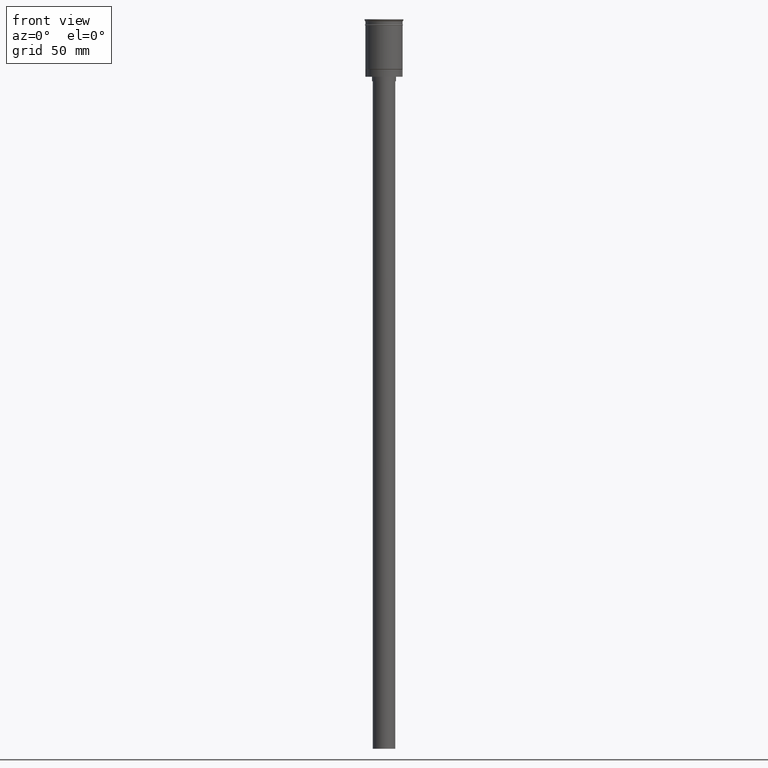
[diagram: clean part render]
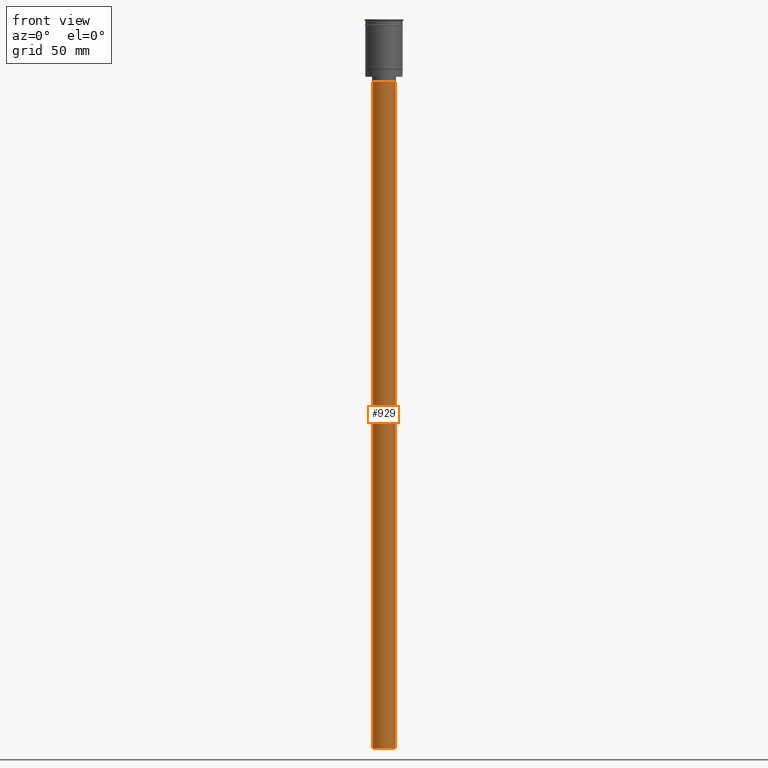
[diagram: same view with one face highlighted and labeled with its STEP entity id]
A machine part, front view. The second image highlights one B-rep face of the part: STEP entity #929.
In plain terms, the highlighted cylindrical surface (edge-blend (fillet) strip) has radius 7.5 mm, axis along (-0, -0, 1).
Its self-contained STEP definition (entity closure, byte-faithful):
#1 = CIRCLE ( 'NONE', #521, 7.500000000000000000 ) ;
#53 = DIRECTION ( 'NONE',  ( -0.000000000000000000, -0.000000000000000000, 1.000000000000000000 ) ) ;
#91 = CARTESIAN_POINT ( 'NONE',  ( 7.500000000000000000, 0.000000000000000000, -488.5000000000000000 ) ) ;
#111 = CARTESIAN_POINT ( 'NONE',  ( 0.000000000000000000, 0.000000000000000000, -488.5000000000000000 ) ) ;
#130 = EDGE_CURVE ( 'NONE', #1181, #868, #546, .T. ) ;
#145 = ORIENTED_EDGE ( 'NONE', *, *, #913, .F. ) ;
#168 = CARTESIAN_POINT ( 'NONE',  ( -7.500000000000000000, 9.184850993605147944E-16, -488.5000000000000000 ) ) ;
#199 = VERTEX_POINT ( 'NONE', #168 ) ;
#253 = DIRECTION ( 'NONE',  ( 1.000000000000000000, 0.000000000000000000, 0.000000000000000000 ) ) ;
#287 = AXIS2_PLACEMENT_3D ( 'NONE', #111, #1357, #253 ) ;
#332 = CARTESIAN_POINT ( 'NONE',  ( 0.000000000000000000, 0.000000000000000000, -488.5000000000000000 ) ) ;
#486 = DIRECTION ( 'NONE',  ( -1.000000000000000000, 0.000000000000000000, 0.000000000000000000 ) ) ;
#508 = CARTESIAN_POINT ( 'NONE',  ( 0.000000000000000000, 0.000000000000000000, -41.50000000000000000 ) ) ;
#521 = AXIS2_PLACEMENT_3D ( 'NONE', #332, #1604, #842 ) ;
#546 = CIRCLE ( 'NONE', #1449, 7.500000000000000000 ) ;
#559 = ORIENTED_EDGE ( 'NONE', *, *, #931, .T. ) ;
#658 = CARTESIAN_POINT ( 'NONE',  ( -7.500000000000000000, 9.184850993605147944E-16, -488.5000000000000000 ) ) ;
#704 = DIRECTION ( 'NONE',  ( -0.000000000000000000, -0.000000000000000000, 1.000000000000000000 ) ) ;
#738 = CARTESIAN_POINT ( 'NONE',  ( 7.500000000000000000, 0.000000000000000000, -488.5000000000000000 ) ) ;
#833 = VECTOR ( 'NONE', #53, 1000.000000000000000 ) ;
#842 = DIRECTION ( 'NONE',  ( -1.000000000000000000, 0.000000000000000000, 0.000000000000000000 ) ) ;
#849 = LINE ( 'NONE', #738, #878 ) ;
#868 = VERTEX_POINT ( 'NONE', #1597 ) ;
#878 = VECTOR ( 'NONE', #704, 1000.000000000000000 ) ;
#913 = EDGE_CURVE ( 'NONE', #1262, #199, #1, .T. ) ;
#929 = ADVANCED_FACE ( 'NONE', ( #1224 ), #1326, .T. ) ;
#931 = EDGE_CURVE ( 'NONE', #1262, #1181, #849, .T. ) ;
#944 = ORIENTED_EDGE ( 'NONE', *, *, #1458, .F. ) ;
#1003 = EDGE_LOOP ( 'NONE', ( #944, #145, #559, #1295 ) ) ;
#1004 = DIRECTION ( 'NONE',  ( 0.000000000000000000, 0.000000000000000000, -1.000000000000000000 ) ) ;
#1172 = LINE ( 'NONE', #658, #833 ) ;
#1181 = VERTEX_POINT ( 'NONE', #1543 ) ;
#1224 = FACE_OUTER_BOUND ( 'NONE', #1003, .T. ) ;
#1262 = VERTEX_POINT ( 'NONE', #91 ) ;
#1295 = ORIENTED_EDGE ( 'NONE', *, *, #130, .T. ) ;
#1326 = CYLINDRICAL_SURFACE ( 'NONE', #287, 7.500000000000000000 ) ;
#1357 = DIRECTION ( 'NONE',  ( -0.000000000000000000, -0.000000000000000000, 1.000000000000000000 ) ) ;
#1449 = AXIS2_PLACEMENT_3D ( 'NONE', #508, #1004, #486 ) ;
#1458 = EDGE_CURVE ( 'NONE', #199, #868, #1172, .T. ) ;
#1543 = CARTESIAN_POINT ( 'NONE',  ( 7.500000000000000000, 0.000000000000000000, -41.50000000000000000 ) ) ;
#1597 = CARTESIAN_POINT ( 'NONE',  ( -7.500000000000000000, 9.184850993605147944E-16, -41.50000000000000000 ) ) ;
#1604 = DIRECTION ( 'NONE',  ( 0.000000000000000000, 0.000000000000000000, -1.000000000000000000 ) ) ;